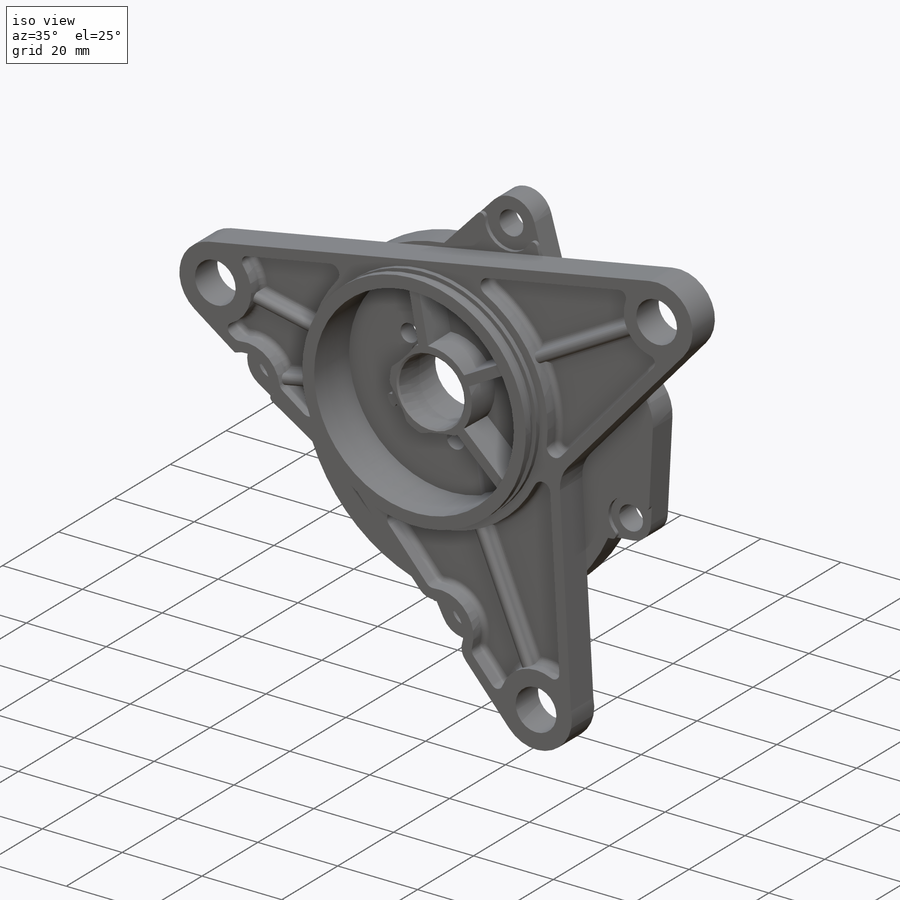
[diagram: iso view]
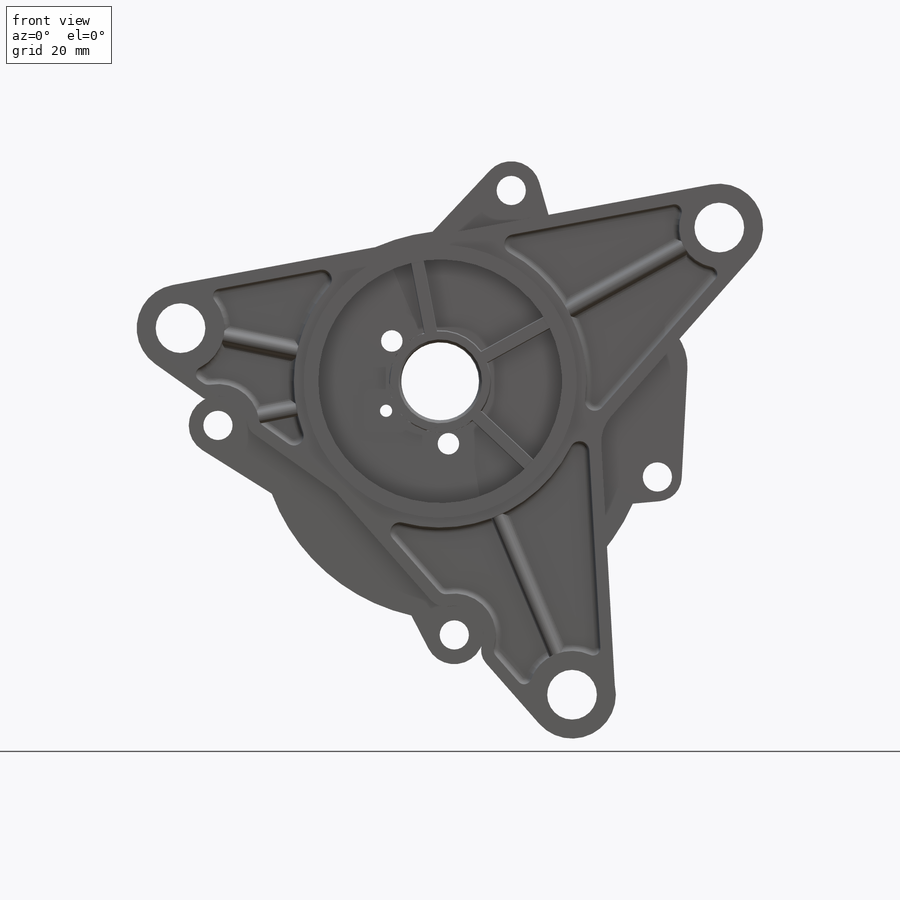
[diagram: front view]
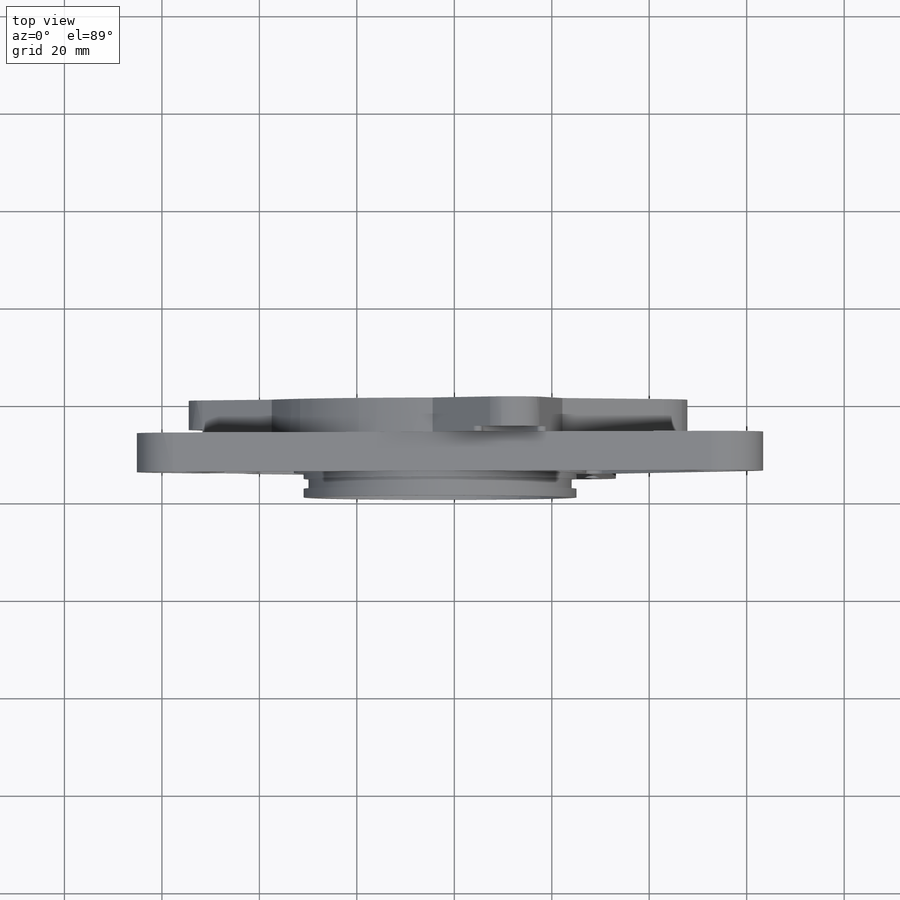
[diagram: top view]
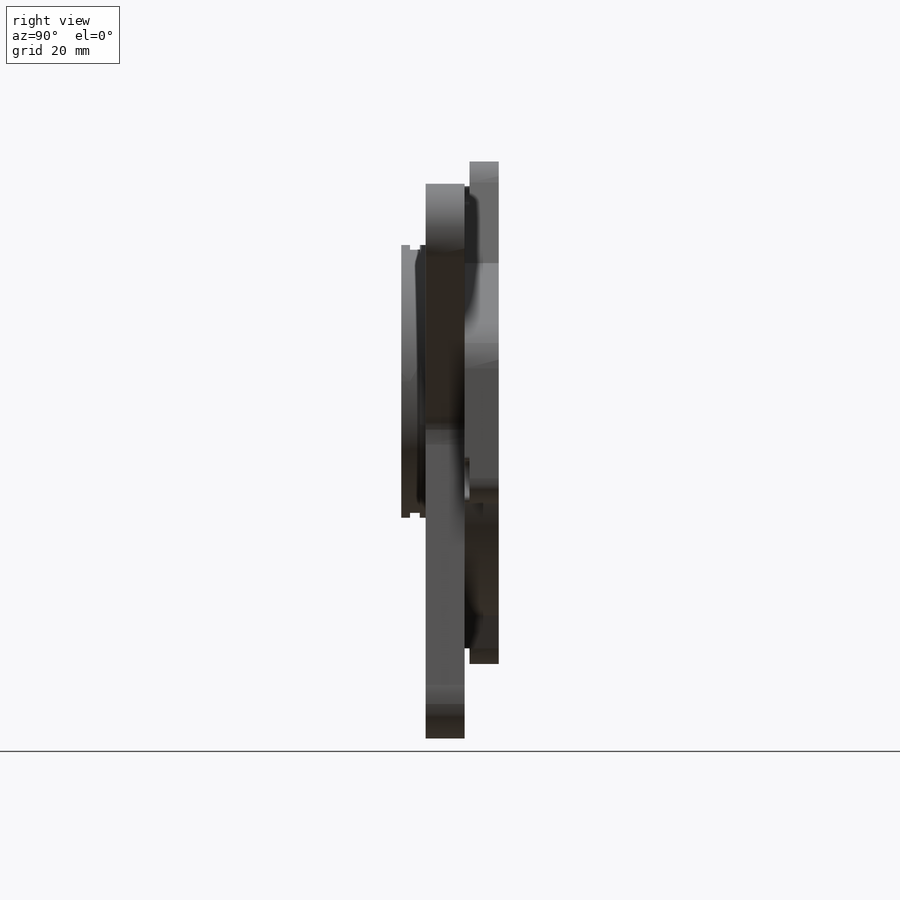
[diagram: right view]
SOLIDWORKS PART (.sldprt)
format: sldprt  version: not decoded by parser v0  size: 1,085,440 bytes
history: native  units: mm
features: sketch x31, cut_extrude x13, plane x8, extrude x6, pattern_circular x4, chamfer x3, fillet x2, material x1, cut_revolve x1 (+9 scaffold rows collapsed)
feature tree (78):
  scaffold x9  (default folders/planes/origin — collapsed)
  material  "Matériau <non spécifié>"
  plane  "Plan1"
  plane  "Plan2"
  plane  "Plan3"
  sketch  "Esquisse1"  dims[c1.D1=6.0mm c1.D2=8.2mm c1.D4=80.0mm c1.D5=2.5mm c2.D2=75.0mm c2.D5=12.0mm c2.D3=5.0mm c2.D6=130.0mm c2.D7=97.0mm c2.D8=6.0mm c3.D6=12.0mm c3.D7=154.4mm c3.D9=98.6mm c3.D10=6.0mm c3.D11=12.0mm c4.D7=105.6mm c4.D9=86.0mm c4.D12=6.0mm c5.D7=10.0mm c5.D9=146.0mm c5.D13=111.28mm c5.D14=12.0mm c6.D9=~28.183237mm c6.D13=~28.183237mm c6.D14=10.0mm c6.D3=42.5mm c6.D5=45.8mm c6.D6=9.0mm c7.D3=43.0mm c7.D4=~7.578272mm c7.D7=41.0mm c8.D7=~0.326248deg c9.D7=48.5mm c10.D7=~179.673752deg c11.D7=38.0mm c12.D7=~0.326248deg c13.D7=14.0mm c13.D9=43.0mm c13.D13=~40.162171mm c14.D13=118.0deg c14.D15=~49.601147mm c14.D16=~17.208811mm]
  extrude  "Base-Extrusion"  Depth=7mm
  sketch  "Esquisse2"  dims[D1=16.0mm D2=2.91mm D3=9.04mm]
  cut_extrude  "Enlèv. mat.-Extru.1"  [1 undecoded]
  sketch  "Esquisse3"  dims[c1.D1=65.0mm c1.D2=57.0mm c1.D3=61.0mm c1.D4=10.0mm c1.D5=12.5mm c1.D6=2.0mm c1.D7=2.0mm c1.D8=2.0mm c2.D3=23.4094mm c3.D3=~0.195985deg c4.D3=5.8mm c4.D4=37.0mm c4.D5=39.0mm]
  cut_extrude  "Enlèv. mat.-Extru.2"  Depth=5mm
  chamfer  "Chanfrein1"  Distance=1mm Angle=45deg
  sketch  "Esquisse4"  dims[D1=11.0mm D2=1.0mm]
  cut_extrude  "Enlèv. mat.-Extru.3"  Depth=1mm
  sketch  "Esquisse5"  dims[D2=2.0mm D1=1.0mm D3=7.6mm]
  cut_extrude  "Enlèv. mat.-Extru.4"  Depth=5mm
  chamfer  "Chanfrein4"  Distance=1mm Angle=45deg
  sketch  "Esquisse7"  dims[D1=11.0mm D2=11.0mm D3=12.0mm D4=10.0mm]
  cut_extrude  "Enlèv. mat.-Extru.6"  Depth=1mm
  fillet  "Congé2"  Radius=1mm
  sketch  "Esquisse8"  dims[c1.D1=86.0mm c1.D2=102.0mm c1.D3=10.2mm c1.D4=154.0mm c1.D5=224.0mm c2.D1=198.0mm c2.D2=220.0mm c3.D1=10.2mm c3.D2=10.2mm c3.D6=16.0mm c4.D1=54.0mm c4.D2=198.0mm c5.D1=220.0mm c5.D2=36.0mm c5.D4=224.0mm c6.D1=10.2mm c6.D2=10.2mm c6.D4=18.0mm c6.D5=18.0mm c6.D6=18.0mm c6.D7=56.0mm c6.D8=50.0mm c6.D9=4.0mm c6.D10=6.0mm c6.D11=3.0mm c6.D12=0.5mm c6.D13=8.0mm c7.D4=18.0mm c7.D5=~37.310662mm c7.D9=2.5mm]
  extrude  "Boss.-Extru.1"  Depth=8mm
  sketch  "Esquisse11"
  cut_extrude  "Enlèv. mat.-Extru.7"  Depth=1mm
  sketch  "Esquisse12"  dims[D1=50.0mm]
  extrude  "Boss.-Extru.3"  Depth=14mm
  plane  "Plan4"  Offset=9.04mm
  sketch  "3DSketch1"
  sketch  "Esquisse14"  dims[D1=27.0mm D2=2.0mm D3=1.2mm D4=1.5mm]
  cut_revolve  "Enlèvement de matière-Révolution2"  Angle=360deg
  sketch  "Esquisse15"  dims[c1.D2=30.0mm c1.D4=2.0mm c1.D5=1.5mm c1.D6=1.5mm c1.D1=2.6mm c2.D2=~1.283809mm c2.D3=2.6mm]
  cut_extrude  "Enlèv. mat.-Extru.8"  Depth=4mm
  sketch  "Esquisse16"
  plane  "Plan5"
  sketch  "Esquisse17"  dims[c1.D1=1.0mm c2.D1=2.5mm c2.D3=1.0deg]
  sketch  "Esquisse18"  dims[D1=17.0mm D2=30.0mm D5=2.0mm D6=1.5mm D3=2.5mm D4=2.5mm]
  cut_extrude  "Enlèv. mat.-Extru.9"  Depth=4mm
  plane  "Plan6"
  sketch  "Esquisse19"  dims[D1=1.0mm]
  sketch  "Nervure3"  dims[D1=2.5mm D3=1.0deg]
  sketch  "Esquisse20"  dims[c1.D1=30.0mm c1.D2=17.0mm c1.D5=1.5mm c1.D6=2.0mm c1.D3=~112.475427mm c2.D3=~179.781581deg c3.D3=2.5mm c3.D4=2.5mm]
  cut_extrude  "Enlèv. mat.-Extru.10"  Depth=4mm
  plane  "Plan7"
  sketch  "Esquisse21"  dims[D1=1.0mm]
  sketch  "Nervure4"  dims[D1=2.5mm D3=1.0deg]
  plane  "Plan8"
  sketch  "Esquisse22"  dims[D1=1.0mm]
  sketch  "Nervure5"  dims[D1=2.5mm D3=1.0deg]
  sketch  "Esquisse23"  dims[D1=16.0mm D2=21.0mm]
  extrude  "Boss.-Extru.4"  Depth=8mm
  sketch  "Esquisse24"  dims[D1=19.0mm]
  sketch  "Nervure6"  dims[D1=2.5mm D3=1.0deg]
  pattern_circular  "Répétition circulaire2"  Count=2 Angle=72deg
  pattern_circular  "Répétition circulaire3"  Count=2 Angle=72deg
  sketch  "Esquisse25"  dims[c1.D1=~10.143225mm c2.D1=36.0deg c2.D2=28.0mm]
  extrude  "Boss.-Extru.5"  Depth=1.5mm
  sketch  "Esquisse27"  dims[c1.D3=62.0mm c1.D4=11.0mm c1.D1=~24.176222mm c2.D1=36.0deg c2.D2=40.0mm]
  cut_extrude  "Enlèv. mat.-Extru.12"  [1 undecoded]
  pattern_circular  "Répétition circulaire4"  Count=2 Angle=72deg
  pattern_circular  "Répétition circulaire5"  Count=2 Angle=288deg
  sketch  "Esquisse28"  dims[c1.D2=0.5mm c1.D3=0.2mm c1.D1=13.0mm c2.D2=~4.709162mm c3.D2=30.0deg]
  extrude  "Boss.-Extru.6"  Depth=1mm
  sketch  "Esquisse29"  dims[D1=2.5mm]
  cut_extrude  "Enlèv. mat.-Extru.13"  [1 undecoded]
  sketch  "Esquisse6"  dims[c1.D1=~23.585128mm c1.D2=~12.104335mm c1.D3=0.8mm c1.D4=4.0mm c1.D5=2.0mm c2.D2=3.0mm c2.D6=3.0mm c2.D7=2.0mm c2.D8=10.5mm c2.D10=24.0mm c2.D11=2.5mm c2.D1=1.5mm c3.D2=0.8mm c3.D3=0.5mm c3.D4=30.0mm c3.D5=34.0mm c3.D1=2.0mm c4.D2=0.5mm c4.D4=0.5mm c4.D5=1.5mm c4.D9=15.0mm c4.D12=~22.293648mm]
  cut_extrude  "Enlèv. mat.-Extru.5"  Depth=3mm
  fillet  "Congé5"  Radius=1.2mm
  chamfer  "Chanfrein5"  Distance=0.4mm Angle=45deg
  sketch  "Esquisse30"
  cut_extrude  "Enlèv. mat.-Extru.14"  [1 undecoded]
decode coverage: 52 of 60 modeling features carry decoded parameters
note: ~ marks probable driven/reference dimensions
note: 4 parameter values undecoded
summary: no parameter record found for 4 features
note: suppression state not decoded; provenance and decode notes live in map.json
